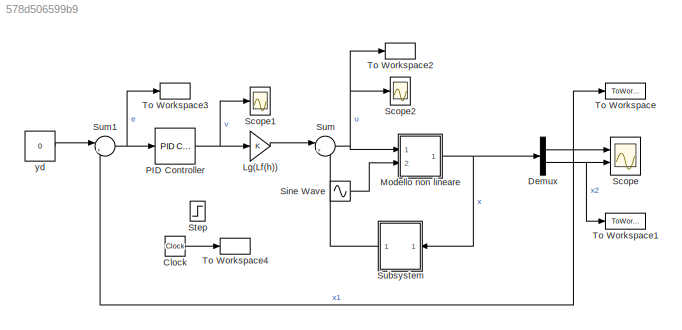
MODEL slx_578d506599b9
KIND model
CONFIG AbsTol = auto
CONFIG EnableMultiTasking = off
CONFIG FixedStep = auto
CONFIG InitFcn = clear\nclc\n%% dati\nw0 = 5.278;\nalfa1 = w0^2;\nalfa3 = -1.402*w0^2;\nalfa5 = 0.271*w0^2;\nmu1 = 0.086;\nmu3 = 0.1080;\n%% disturbi e variazioni parametriche\nAd = 0;\nfd = 2;\nalfa1_hat = 0.8*w0^2;
CONFIG MaxStep = 1e-3
CONFIG MinStep = auto
CONFIG RelTol = 1e-3
CONFIG SampleTimeConstraint = Unconstrained
CONFIG SolverName = VariableStepAuto
CONFIG StartTime = 0.0
CONFIG StopTime = 25
BLOCK [Clock] Clock
BLOCK [Demux] Demux
  Outputs = 2
  Ports = [1, 2]
BLOCK [Gain] Lg(Lf(h))
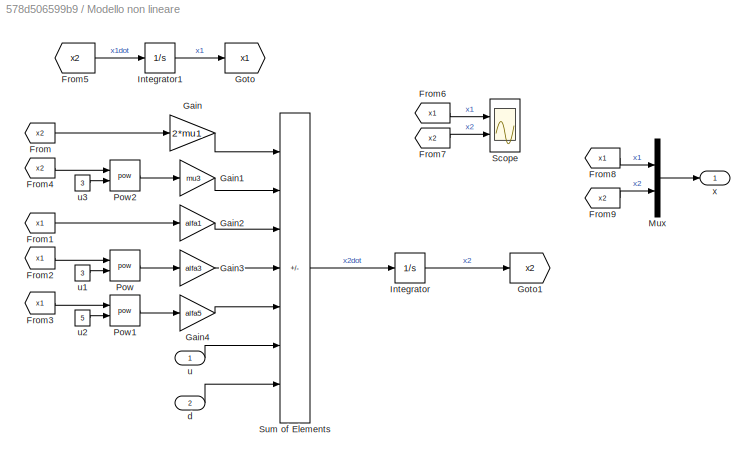
BLOCK [SubSystem] Modello non lineare
  Ports = [2, 1]
  RequestExecContextInheritance = off
BLOCK [From] Modello non lineare/From
  GotoTag = x2
BLOCK [From] Modello non lineare/From1
  GotoTag = x1
BLOCK [From] Modello non lineare/From2
  GotoTag = x1
BLOCK [From] Modello non lineare/From3
  GotoTag = x1
BLOCK [From] Modello non lineare/From4
  GotoTag = x2
BLOCK [From] Modello non lineare/From5
  GotoTag = x2
BLOCK [From] Modello non lineare/From6
  GotoTag = x1
BLOCK [From] Modello non lineare/From7
  GotoTag = x2
BLOCK [From] Modello non lineare/From8
  GotoTag = x1
BLOCK [From] Modello non lineare/From9
  GotoTag = x2
BLOCK [Gain] Modello non lineare/Gain
  Gain = 2*mu1
BLOCK [Gain] Modello non lineare/Gain1
  Gain = mu3
BLOCK [Gain] Modello non lineare/Gain2
  Gain = alfa1
BLOCK [Gain] Modello non lineare/Gain3
  Gain = alfa3
BLOCK [Gain] Modello non lineare/Gain4
  Gain = alfa5
BLOCK [Goto] Modello non lineare/Goto
  GotoTag = x1
BLOCK [Goto] Modello non lineare/Goto1
  GotoTag = x2
BLOCK [Integrator] Modello non lineare/Integrator
  InitialCondition = -0.18
  Ports = [1, 1]
BLOCK [Integrator] Modello non lineare/Integrator1
  InitialCondition = -1.2
  Ports = [1, 1]
BLOCK [Mux] Modello non lineare/Mux
  DisplayOption = bar
  Inputs = 2
  Ports = [2, 1]
BLOCK [Math] Modello non lineare/Pow
  Operator = pow
  Ports = [2, 1]
  RndMeth = Zero
BLOCK [Math] Modello non lineare/Pow1
  Operator = pow
  Ports = [2, 1]
  RndMeth = Zero
BLOCK [Math] Modello non lineare/Pow2
  Operator = pow
  Ports = [2, 1]
  RndMeth = Zero
BLOCK [Scope] Modello non lineare/Scope
  Floating = off
  NumInputPorts = 2
  Ports = [2]
  ScopeSpecificationString = Simulink.scopes.TimeScopeBlockCfg('CurrentConfiguration', extmgr.ConfigurationSet(extmgr.Configuration('Core','General UI',true,'FigureColor',[0.313725490196078 0.313725490196078 0.313725490196078]),extmgr.Configuration('Core','Source UI',true),extmgr.Configuration('Sources','WiredSimulink',true),extmgr.Configuration('Visuals','Time Domain',true,'SerializedDisplays',{struct('MinYLimReal','-0.5293'...<+2313ch>
BLOCK [Sum] Modello non lineare/Sum of Elements
  IconShape = rectangular
  Inputs = -----++
  Ports = [7, 1]
BLOCK [Inport] Modello non lineare/d
  Port = 2
BLOCK [Inport] Modello non lineare/u
BLOCK [Constant] Modello non lineare/u1
  Value = 3
BLOCK [Constant] Modello non lineare/u2
  Value = 5
BLOCK [Constant] Modello non lineare/u3
  Value = 3
BLOCK [Outport] Modello non lineare/x
BLOCK [Reference] PID Controller  REF=slpidlib/PID Controller
  Ports = [1, 1]
  SourceBlock = slpidlib/PID Controller
  SourceProductBaseCode = SL
  SourceType = PID 1dof
BLOCK [Scope] Scope
  Floating = off
  NumInputPorts = 2
  Ports = [2]
  ScopeSpecificationString = Simulink.scopes.TimeScopeBlockCfg('CurrentConfiguration', extmgr.ConfigurationSet(extmgr.Configuration('Core','General UI',true),extmgr.Configuration('Core','Source UI',true),extmgr.Configuration('Sources','WiredSimulink',true,'DataLoggingVariableName','ScopeData1'),extmgr.Configuration('Visuals','Time Domain',true,'SerializedDisplays',{struct('MinYLimReal','-0.0817','MaxYLimReal','0.02787','YLabe...<+2070ch>
BLOCK [Scope] Scope1
  Floating = off
  NumInputPorts = 1
  Ports = [1]
  ScopeSpecificationString = Simulink.scopes.TimeScopeBlockCfg('CurrentConfiguration', extmgr.ConfigurationSet(extmgr.Configuration('Core','General UI',true),extmgr.Configuration('Core','Source UI',true),extmgr.Configuration('Sources','WiredSimulink',true,'DataLoggingVariableName','ScopeData1'),extmgr.Configuration('Visuals','Time Domain',true,'SerializedDisplays',{struct('MinYLimReal','-6.00182','MaxYLimReal','21.53354','YLa...<+1443ch>
BLOCK [Scope] Scope2
  Floating = off
  NumInputPorts = 1
  Ports = [1]
  ScopeSpecificationString = Simulink.scopes.TimeScopeBlockCfg('CurrentConfiguration', extmgr.ConfigurationSet(extmgr.Configuration('Core','General UI',true),extmgr.Configuration('Core','Source UI',true),extmgr.Configuration('Sources','WiredSimulink',true,'DataLoggingVariableName','ScopeData2'),extmgr.Configuration('Visuals','Time Domain',true,'SerializedDisplays',{struct('MinYLimReal','143.94872','MaxYLimReal','183.29287','Y...<+1472ch>
BLOCK [Sin] Sine Wave
  Amplitude = Ad
  Frequency = fd
  Ports = [0, 1]
  SampleTime = 0
BLOCK [Step] Step
  After = 2
  Commented = on
  SampleTime = 0
  Time = 20
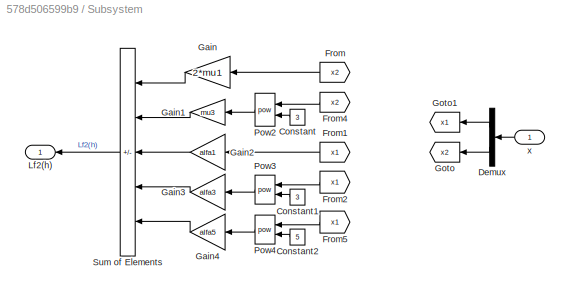
BLOCK [SubSystem] Subsystem
  NameLocation = top
  Ports = [1, 1]
  RequestExecContextInheritance = off
BLOCK [Constant] Subsystem/Constant
  NameLocation = top
  Value = 3
BLOCK [Constant] Subsystem/Constant1
  NameLocation = top
  Value = 3
BLOCK [Constant] Subsystem/Constant2
  NameLocation = top
  Value = 5
BLOCK [Demux] Subsystem/Demux
  NameLocation = top
  Outputs = 2
  Ports = [1, 2]
BLOCK [From] Subsystem/From
  GotoTag = x2
  NameLocation = top
BLOCK [From] Subsystem/From1
  GotoTag = x1
  NameLocation = top
BLOCK [From] Subsystem/From2
  GotoTag = x1
  NameLocation = top
BLOCK [From] Subsystem/From4
  GotoTag = x2
  NameLocation = top
BLOCK [From] Subsystem/From5
  GotoTag = x1
  NameLocation = top
BLOCK [Gain] Subsystem/Gain
  Gain = 2*mu1
BLOCK [Gain] Subsystem/Gain1
  Gain = mu3
  NameLocation = top
BLOCK [Gain] Subsystem/Gain2
  Gain = alfa1
  NameLocation = top
BLOCK [Gain] Subsystem/Gain3
  Gain = alfa3
  NameLocation = top
BLOCK [Gain] Subsystem/Gain4
  Gain = alfa5
  NameLocation = top
BLOCK [Goto] Subsystem/Goto
  GotoTag = x2
BLOCK [Goto] Subsystem/Goto1
  GotoTag = x1
BLOCK [Outport] Subsystem/Lf2(h)
BLOCK [Math] Subsystem/Pow2
  NameLocation = top
  Operator = pow
  Ports = [2, 1]
  RndMeth = Zero
BLOCK [Math] Subsystem/Pow3
  NameLocation = top
  Operator = pow
  Ports = [2, 1]
  RndMeth = Zero
BLOCK [Math] Subsystem/Pow4
  NameLocation = top
  Operator = pow
  Ports = [2, 1]
  RndMeth = Zero
BLOCK [Sum] Subsystem/Sum of Elements
  IconShape = rectangular
  Inputs = -----
  Ports = [5, 1]
BLOCK [Inport] Subsystem/x
BLOCK [Sum] Sum
  Inputs = |+-
  Ports = [2, 1]
BLOCK [Sum] Sum1
  Inputs = |+-
  Ports = [2, 1]
BLOCK [ToWorkspace] To Workspace
  FixptAsFi = on
  MaxDataPoints = inf
  Ports = [1]
  SampleTime = -1
  Save2DSignal = 2-D array (concatenate along first dimension)
  VariableName = x1
BLOCK [ToWorkspace] To Workspace1
  FixptAsFi = on
  MaxDataPoints = inf
  Ports = [1]
  SampleTime = -1
  Save2DSignal = 2-D array (concatenate along first dimension)
  VariableName = x2
BLOCK [ToWorkspace] To Workspace2
  FixptAsFi = on
  MaxDataPoints = inf
  Ports = [1]
  SampleTime = -1
  Save2DSignal = 2-D array (concatenate along first dimension)
  VariableName = u
BLOCK [ToWorkspace] To Workspace3
  FixptAsFi = on
  MaxDataPoints = inf
  Ports = [1]
  SampleTime = -1
  Save2DSignal = 2-D array (concatenate along first dimension)
  VariableName = e
BLOCK [ToWorkspace] To Workspace4
  FixptAsFi = on
  MaxDataPoints = inf
  Ports = [1]
  SampleTime = -1
  Save2DSignal = 2-D array (concatenate along first dimension)
  VariableName = t
BLOCK [Constant] yd
  Value = 0
LINE Clock:1 -> To Workspace4:1
NET Demux:1 -> Scope:1, Sum1:2, To Workspace:1
NET Demux:2 -> Scope:2, To Workspace1:1
LINE Lg(Lf(h)):1 -> Sum:1
LINE Modello non lineare/From1:1 -> Modello non lineare/Gain2:1
LINE Modello non lineare/From2:1 -> Modello non lineare/Pow:1
LINE Modello non lineare/From3:1 -> Modello non lineare/Pow1:1
LINE Modello non lineare/From4:1 -> Modello non lineare/Pow2:1
LINE Modello non lineare/From5:1 -> Modello non lineare/Integrator1:1
LINE Modello non lineare/From6:1 -> Modello non lineare/Scope:1
LINE Modello non lineare/From7:1 -> Modello non lineare/Scope:2
LINE Modello non lineare/From8:1 -> Modello non lineare/Mux:1
LINE Modello non lineare/From9:1 -> Modello non lineare/Mux:2
LINE Modello non lineare/From:1 -> Modello non lineare/Gain:1
LINE Modello non lineare/Gain1:1 -> Modello non lineare/Sum of Elements:2
LINE Modello non lineare/Gain2:1 -> Modello non lineare/Sum of Elements:3
LINE Modello non lineare/Gain3:1 -> Modello non lineare/Sum of Elements:4
LINE Modello non lineare/Gain4:1 -> Modello non lineare/Sum of Elements:5
LINE Modello non lineare/Gain:1 -> Modello non lineare/Sum of Elements:1
LINE Modello non lineare/Integrator1:1 -> Modello non lineare/Goto:1
LINE Modello non lineare/Integrator:1 -> Modello non lineare/Goto1:1
LINE Modello non lineare/Mux:1 -> Modello non lineare/x:1
LINE Modello non lineare/Pow1:1 -> Modello non lineare/Gain4:1
LINE Modello non lineare/Pow2:1 -> Modello non lineare/Gain1:1
LINE Modello non lineare/Pow:1 -> Modello non lineare/Gain3:1
LINE Modello non lineare/Sum of Elements:1 -> Modello non lineare/Integrator:1
LINE Modello non lineare/d:1 -> Modello non lineare/Sum of Elements:7
LINE Modello non lineare/u1:1 -> Modello non lineare/Pow:2
LINE Modello non lineare/u2:1 -> Modello non lineare/Pow1:2
LINE Modello non lineare/u3:1 -> Modello non lineare/Pow2:2
LINE Modello non lineare/u:1 -> Modello non lineare/Sum of Elements:6
NET Modello non lineare:1 -> Demux:1, Subsystem:1
NET PID Controller:1 -> Lg(Lf(h)):1, Scope1:1
LINE Sine Wave:1 -> Modello non lineare:2
LINE Subsystem/Constant1:1 -> Subsystem/Pow3:2
LINE Subsystem/Constant2:1 -> Subsystem/Pow4:2
LINE Subsystem/Constant:1 -> Subsystem/Pow2:2
LINE Subsystem/Demux:1 -> Subsystem/Goto1:1
LINE Subsystem/Demux:2 -> Subsystem/Goto:1
LINE Subsystem/From1:1 -> Subsystem/Gain2:1
LINE Subsystem/From2:1 -> Subsystem/Pow3:1
LINE Subsystem/From4:1 -> Subsystem/Pow2:1
LINE Subsystem/From5:1 -> Subsystem/Pow4:1
LINE Subsystem/From:1 -> Subsystem/Gain:1
LINE Subsystem/Gain1:1 -> Subsystem/Sum of Elements:2
LINE Subsystem/Gain2:1 -> Subsystem/Sum of Elements:3
LINE Subsystem/Gain3:1 -> Subsystem/Sum of Elements:4
LINE Subsystem/Gain4:1 -> Subsystem/Sum of Elements:5
LINE Subsystem/Gain:1 -> Subsystem/Sum of Elements:1
LINE Subsystem/Pow2:1 -> Subsystem/Gain1:1
LINE Subsystem/Pow3:1 -> Subsystem/Gain3:1
LINE Subsystem/Pow4:1 -> Subsystem/Gain4:1
LINE Subsystem/Sum of Elements:1 -> Subsystem/Lf2(h):1
LINE Subsystem/x:1 -> Subsystem/Demux:1
LINE Subsystem:1 -> Sum:2
NET Sum1:1 -> PID Controller:1, To Workspace3:1
NET Sum:1 -> Modello non lineare:1, Scope2:1, To Workspace2:1
LINE yd:1 -> Sum1:1
note: NET lines group one-source signal fan-out (src -> all destinations, sorted); 1:1 wires keep LINE
